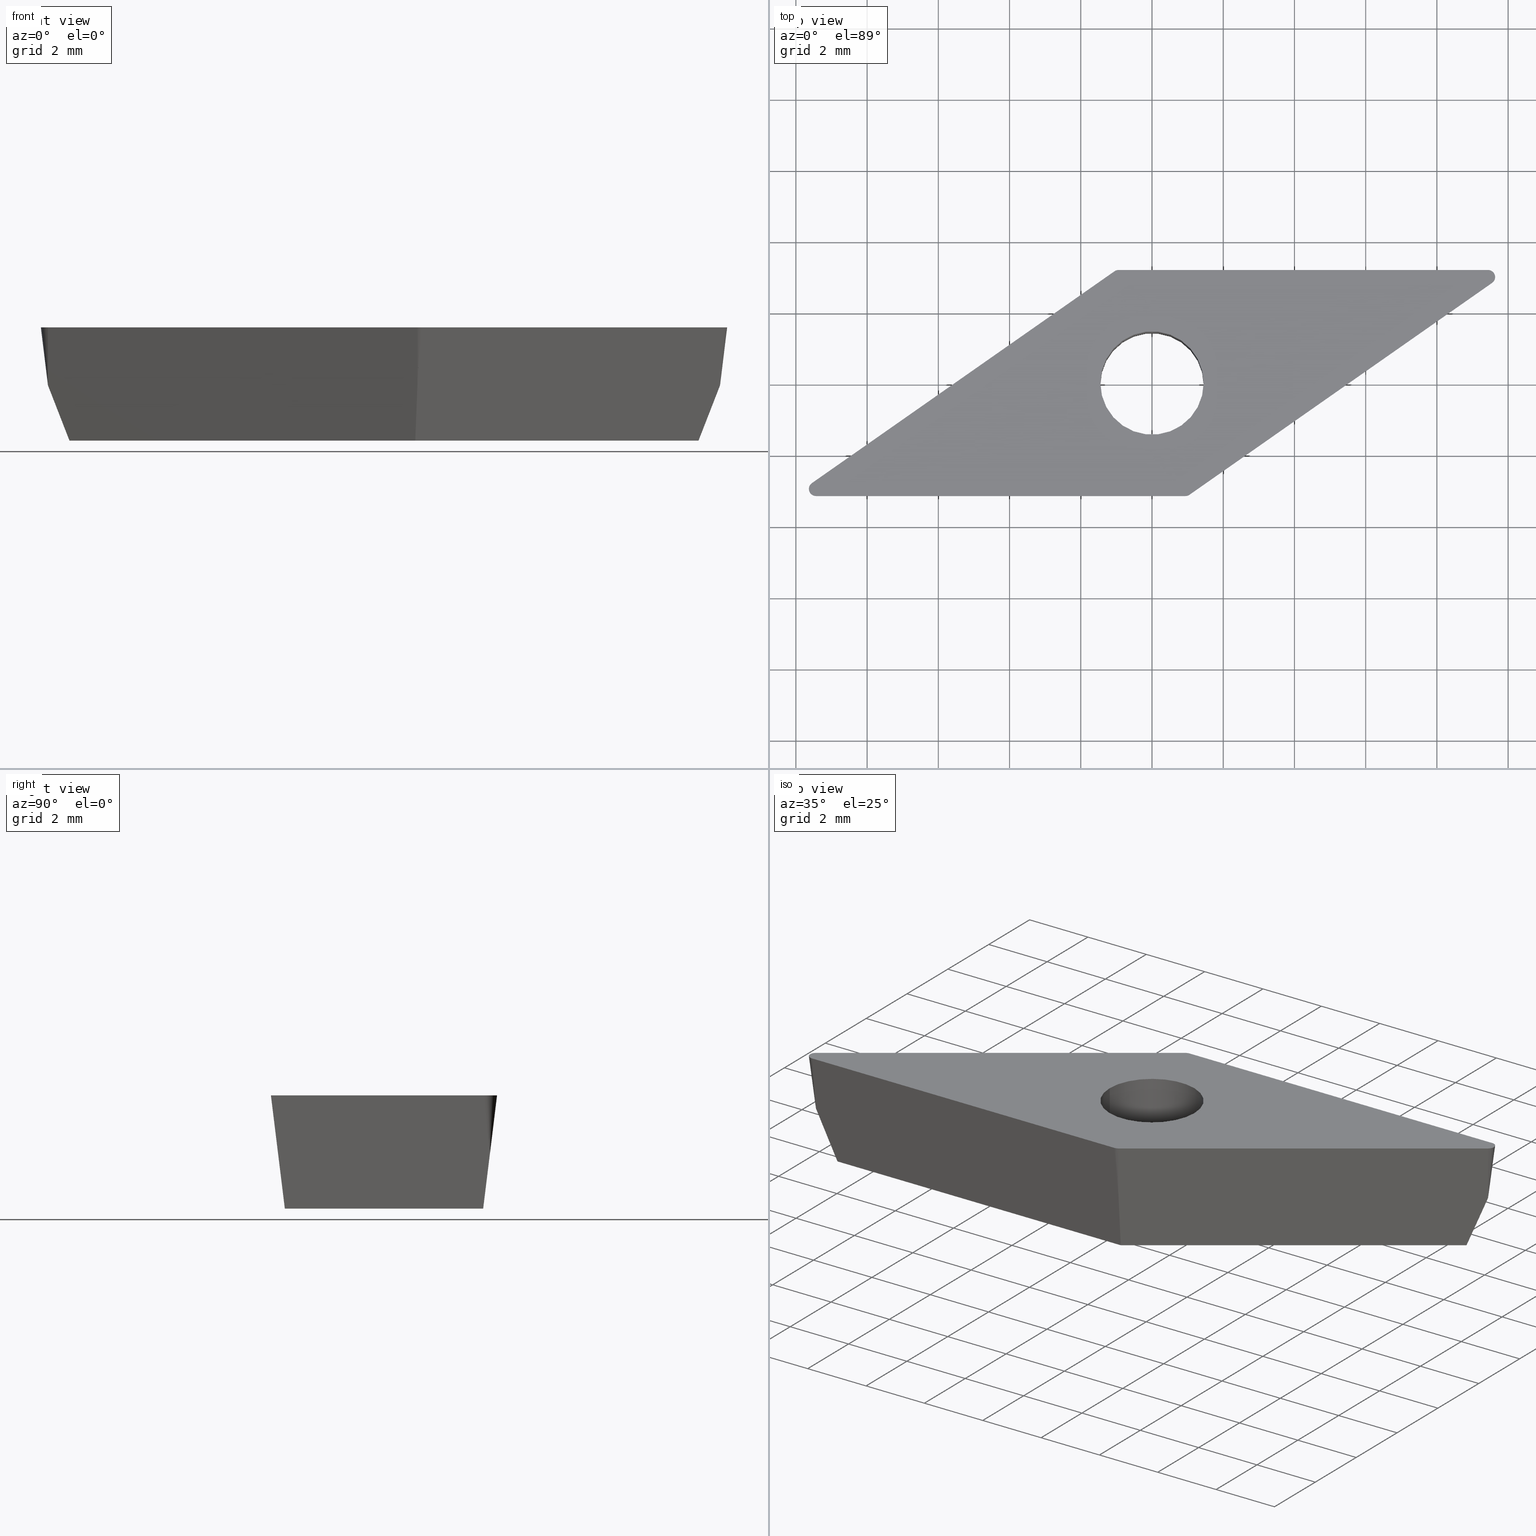
[diagram: canonical four-view strip — front | top / right | iso, engineering-drawing reading convention]
A machine part, canonical four-view strip (front | top / right | iso — engineering-drawing reading convention). The complete STEP part file that produces these views, byte-faithful:
ISO-10303-21;
HEADER;
FILE_DESCRIPTION (( 'STEP AP214' ),
    '1' );
FILE_NAME ('VC.. 110302.step',
    '2017-03-30T12:57:33',
    ( '' ),
    ( '' ),
    'SwSTEP 2.0',
    'SolidWorks 2016',
    '' );
FILE_SCHEMA (( 'AUTOMOTIVE_DESIGN' ));
ENDSEC;

DATA;
#1 = ADVANCED_FACE ( 'NONE', ( #20 ), #291, .T. ) ;
#2 = SURFACE_STYLE_USAGE ( .BOTH. , #3 ) ;
#3 = SURFACE_SIDE_STYLE ('',( #79 ) ) ;
#4 = LINE ( 'NONE', #425, #319 ) ;
#5 = FILL_AREA_STYLE ('',( #6 ) ) ;
#6 = FILL_AREA_STYLE_COLOUR ( '', #84 ) ;
#7 = EDGE_CURVE ( 'NONE', #115, #257, #66, .T. ) ;
#8 = LINE ( 'NONE', #126, #229 ) ;
#9 =( NAMED_UNIT ( * ) PLANE_ANGLE_UNIT ( ) SI_UNIT ( $, .RADIAN. ) );
#10 =( NAMED_UNIT ( * ) SI_UNIT ( $, .STERADIAN. ) SOLID_ANGLE_UNIT ( ) );
#11 =( NAMED_UNIT ( * ) PLANE_ANGLE_UNIT ( ) SI_UNIT ( $, .RADIAN. ) );
#12 =( LENGTH_UNIT ( ) NAMED_UNIT ( * ) SI_UNIT ( .MILLI., .METRE. ) );
#13 = LINE ( 'NONE', #414, #345 ) ;
#14 = PLANE ( 'NONE',  #390 ) ;
#15 = EDGE_CURVE ( 'NONE', #215, #317, #4, .T. ) ;
#16 = VECTOR ( 'NONE', #420, 1000.000000000000000 ) ;
#17 = CARTESIAN_POINT ( 'NONE',  ( 0.0000000000000000000, 0.0000000000000000000, -3.180000000000000200 ) ) ;
#18 = DIRECTION ( 'NONE',  ( -1.000000000000000000, 0.0000000000000000000, 0.0000000000000000000 ) ) ;
#19 = EDGE_CURVE ( 'NONE', #118, #131, #8, .T. ) ;
#20 = FACE_OUTER_BOUND ( 'NONE', #271, .T. ) ;
#21 = VECTOR ( 'NONE', #164, 1000.000000000000000 ) ;
#22 = CARTESIAN_POINT ( 'NONE',  ( 0.9179971634270601700, -2.911515032109588000, -2.145912857063276800 ) ) ;
#23 = ORIENTED_EDGE ( 'NONE', *, *, #429, .F. ) ;
#24 = EDGE_CURVE ( 'NONE', #215, #35, #372, .T. ) ;
#25 = CARTESIAN_POINT ( 'NONE',  ( -9.281462945656608500, -3.194979910196148200, -3.815999999999999800 ) ) ;
#26 = ORIENTED_EDGE ( 'NONE', *, *, #412, .T. ) ;
#27 = VERTEX_POINT ( 'NONE', #340 ) ;
#28 =( LENGTH_UNIT ( ) NAMED_UNIT ( * ) SI_UNIT ( .MILLI., .METRE. ) );
#29 = ORIENTED_EDGE ( 'NONE', *, *, #113, .T. ) ;
#30 = CARTESIAN_POINT ( 'NONE',  ( -6.448969398951716900, -1.211646576862349900, -3.815999999999999800 ) ) ;
#31 = CARTESIAN_POINT ( 'NONE',  ( -3.616475852246811700, 0.7716867564714594600, -3.815999999999999800 ) ) ;
#32 = ORIENTED_EDGE ( 'NONE', *, *, #201, .F. ) ;
#33 = ORIENTED_EDGE ( 'NONE', *, *, #437, .F. ) ;
#34 = APPLICATION_PROTOCOL_DEFINITION ( 'draft international standard', 'automotive_design', 1998, #352 ) ;
#35 = VERTEX_POINT ( 'NONE', #245 ) ;
#36 = CARTESIAN_POINT ( 'NONE',  ( -0.7839823055409345100, 2.755020089803848800, -3.815999999999999800 ) ) ;
#37 = LINE ( 'NONE', #346, #451 ) ;
#38 = ORIENTED_EDGE ( 'NONE', *, *, #424, .T. ) ;
#39 = UNCERTAINTY_MEASURE_WITH_UNIT (LENGTH_MEASURE( 1.000000000000000100E-005 ), #28, 'distance_accuracy_value', 'NONE');
#40 = ORIENTED_EDGE ( 'NONE', *, *, #438, .F. ) ;
#41 = ORIENTED_EDGE ( 'NONE', *, *, #276, .T. ) ;
#42 = ORIENTED_EDGE ( 'NONE', *, *, #447, .T. ) ;
#43 = CARTESIAN_POINT ( 'NONE',  ( -0.9380138969149687300, 2.974999999999994300, -1.628869285594952500 ) ) ;
#44 = CARTESIAN_POINT ( 'NONE',  ( -0.9179971634271118000, 2.911515032109584000, -2.145912857063301700 ) ) ;
#45 = EDGE_CURVE ( 'NONE', #257, #53, #403, .T. ) ;
#46 = CARTESIAN_POINT ( 'NONE',  ( -1.052729184185179800, 3.138830408857796500, 0.0000000000000000000 ) ) ;
#47 = ORIENTED_EDGE ( 'NONE', *, *, #175, .T. ) ;
#48 = CARTESIAN_POINT ( 'NONE',  ( 9.550209824300852200, 2.811169591142202800, 0.0000000000000000000 ) ) ;
#49 = EDGE_LOOP ( 'NONE', ( #119, #128, #132, #134 ) ) ;
#50 = DIRECTION ( 'NONE',  ( 2.864399321849623000E-017, -0.1218693434051477400, -0.9925461516413219800 ) ) ;
#51 = ORIENTED_EDGE ( 'NONE', *, *, #45, .T. ) ;
#52 = CARTESIAN_POINT ( 'NONE',  ( 0.9380138969149679500, -2.975000000000001000, -1.628869285594915400 ) ) ;
#53 = VERTEX_POINT ( 'NONE', #190 ) ;
#54 = DIRECTION ( 'NONE',  ( -0.0000000000000000000, -0.0000000000000000000, 1.000000000000000000 ) ) ;
#55 = CARTESIAN_POINT ( 'NONE',  ( 9.435494537030640700, 3.175000000000002500, 0.0000000000000000000 ) ) ;
#56 = CARTESIAN_POINT ( 'NONE',  ( -9.550209824300854000, -2.811169591142201900, 0.0000000000000000000 ) ) ;
#57 = ORIENTED_EDGE ( 'NONE', *, *, #438, .T. ) ;
#58 = ORIENTED_EDGE ( 'NONE', *, *, #124, .T. ) ;
#59 = DIRECTION ( 'NONE',  ( 0.06990138369076597000, -0.09982952178648431300, -0.9925461516413219800 ) ) ;
#60 = ORIENTED_EDGE ( 'NONE', *, *, #107, .F. ) ;
#61 = CARTESIAN_POINT ( 'NONE',  ( -0.8979804299392549800, 2.848030064219173200, -2.662956428531650500 ) ) ;
#62 = ORIENTED_EDGE ( 'NONE', *, *, #439, .T. ) ;
#63 = DIRECTION ( 'NONE',  ( 0.0000000000000000000, 0.0000000000000000000, -1.000000000000000000 ) ) ;
#64 = EDGE_CURVE ( 'NONE', #131, #316, #370, .T. ) ;
#65 = CARTESIAN_POINT ( 'NONE',  ( -3.885222730891063400, 1.155497075525402800, 0.0000000000000000000 ) ) ;
#66 = B_SPLINE_CURVE_WITH_KNOTS ( 'NONE', 3,
 ( #327, #287, #87, #322 ),
 .UNSPECIFIED., .F., .F.,
 ( 4, 4 ),
 ( 6.942281208919283300E-019, 0.009709412450913616100 ),
 .UNSPECIFIED. ) ;
#67 = CONICAL_SURFACE ( 'NONE', #397, 0.1999999999999999800, 0.1221730476396033400 ) ;
#68 = CARTESIAN_POINT ( 'NONE',  ( -0.8779636964513973800, 2.784545096328761900, -3.180000000000000200 ) ) ;
#69 = ORIENTED_EDGE ( 'NONE', *, *, #423, .F. ) ;
#70 = CARTESIAN_POINT ( 'NONE',  ( 0.8779636964512450600, -2.784545096328762800, -3.179999999999999300 ) ) ;
#71 = CARTESIAN_POINT ( 'NONE',  ( 3.885222730888096000, -1.155497075521182000, 0.0000000000000000000 ) ) ;
#72 = CARTESIAN_POINT ( 'NONE',  ( 9.032797348652094300, 2.848030064219322400, -2.662956428530456800 ) ) ;
#73 = ORIENTED_EDGE ( 'NONE', *, *, #24, .F. ) ;
#74 = ORIENTED_EDGE ( 'NONE', *, *, #15, .T. ) ;
#75 = CARTESIAN_POINT ( 'NONE',  ( 9.435494537030640700, 2.975000000000666200, -1.628869285589508800 ) ) ;
#76 = DIRECTION ( 'NONE',  ( 0.8191520442889946900, 0.5735764363510419400, -0.0000000000000000000 ) ) ;
#77 = DIRECTION ( 'NONE',  ( -1.000000000000000000, 0.0000000000000000000, -0.0000000000000000000 ) ) ;
#78 = ORIENTED_EDGE ( 'NONE', *, *, #104, .F. ) ;
#79 = SURFACE_STYLE_FILL_AREA ( #5 ) ;
#80 = ORIENTED_EDGE ( 'NONE', *, *, #7, .T. ) ;
#81 = CARTESIAN_POINT ( 'NONE',  ( 0.9380138969149678400, -2.974999999999999600, 0.0000000000000000000 ) ) ;
#82 = ORIENTED_EDGE ( 'NONE', *, *, #423, .T. ) ;
#83 = DIRECTION ( 'NONE',  ( 1.000000000000000000, 0.0000000000000000000, 0.0000000000000000000 ) ) ;
#84 = COLOUR_RGB ( '',0.7960784313725489700, 0.8235294117647058400, 0.9372549019607843100 ) ;
#85 = DIRECTION ( 'NONE',  ( -1.432199660924811500E-017, 0.1218693434051477400, -0.9925461516413219800 ) ) ;
#86 = DIRECTION ( 'NONE',  ( 0.0000000000000000000, 0.0000000000000000000, 1.000000000000000000 ) ) ;
#87 = CARTESIAN_POINT ( 'NONE',  ( 6.180287068457972500, 0.9281816987769934100, -3.180000000000000200 ) ) ;
#88 = CARTESIAN_POINT ( 'NONE',  ( 0.0000000000000000000, 0.0000000000000000000, -3.180000000000000200 ) ) ;
#89 = CARTESIAN_POINT ( 'NONE',  ( 0.0000000000000000000, 0.0000000000000000000, 0.0000000000000000000 ) ) ;
#90 = CARTESIAN_POINT ( 'NONE',  ( -0.8779636964513973800, 2.784545096328761900, -3.180000000000000200 ) ) ;
#91 = CARTESIAN_POINT ( 'NONE',  ( 9.234145942840971300, 2.911515032109031500, -2.145912857060378300 ) ) ;
#92 = CARTESIAN_POINT ( 'NONE',  ( -9.435494537030644200, -2.975000000000001000, 0.0000000000000000000 ) ) ;
#93 = ORIENTED_EDGE ( 'NONE', *, *, #441, .T. ) ;
#94 = ORIENTED_EDGE ( 'NONE', *, *, #262, .T. ) ;
#95 = CARTESIAN_POINT ( 'NONE',  ( 1.450000000000000000, 0.0000000000000000000, 0.0000000000000000000 ) ) ;
#96 = ORIENTED_EDGE ( 'NONE', *, *, #104, .T. ) ;
#97 = ORIENTED_EDGE ( 'NONE', *, *, #443, .F. ) ;
#98 = ORIENTED_EDGE ( 'NONE', *, *, #228, .T. ) ;
#99 = CARTESIAN_POINT ( 'NONE',  ( -1.052729184185179800, 3.138830408857796500, 0.0000000000000000000 ) ) ;
#100 = ORIENTED_EDGE ( 'NONE', *, *, #379, .F. ) ;
#101 = LINE ( 'NONE', #329, #16 ) ;
#102 = ORIENTED_EDGE ( 'NONE', *, *, #158, .T. ) ;
#103 = CARTESIAN_POINT ( 'NONE',  ( 9.435494537030640700, 2.975000000000666200, -1.628869285589508800 ) ) ;
#104 = EDGE_CURVE ( 'NONE', #115, #317, #323, .T. ) ;
#105 = ORIENTED_EDGE ( 'NONE', *, *, #447, .F. ) ;
#106 = VERTEX_POINT ( 'NONE', #455 ) ;
#107 = EDGE_CURVE ( 'NONE', #27, #368, #178, .T. ) ;
#108 =( LENGTH_UNIT ( ) NAMED_UNIT ( * ) SI_UNIT ( .MILLI., .METRE. ) );
#109 = ORIENTED_EDGE ( 'NONE', *, *, #417, .T. ) ;
#110 = B_SPLINE_CURVE_WITH_KNOTS ( 'NONE', 3,
 ( #90, #220, #233, #234 ),
 .UNSPECIFIED., .F., .F.,
 ( 4, 4 ),
 ( 5.421010862427522200E-019, 0.009709412450913817300 ),
 .UNSPECIFIED. ) ;
#111 = CARTESIAN_POINT ( 'NONE',  ( 0.0000000000000000000, 0.0000000000000000000, -3.180000000000000200 ) ) ;
#112 = DIRECTION ( 'NONE',  ( -0.8191520442889948000, -0.5735764363510417200, -0.0000000000000000000 ) ) ;
#113 = EDGE_CURVE ( 'NONE', #309, #294, #166, .T. ) ;
#114 = CARTESIAN_POINT ( 'NONE',  ( 9.435494537030642400, 2.975000000000002300, 0.0000000000000000000 ) ) ;
#115 = VERTEX_POINT ( 'NONE', #70 ) ;
#116 = CARTESIAN_POINT ( 'NONE',  ( 0.8779636964512450600, -2.784545096328762800, -3.179999999999999300 ) ) ;
#117 = ORIENTED_EDGE ( 'NONE', *, *, #429, .T. ) ;
#118 = VERTEX_POINT ( 'NONE', #381 ) ;
#119 = ORIENTED_EDGE ( 'NONE', *, *, #276, .F. ) ;
#120 = VERTEX_POINT ( 'NONE', #334 ) ;
#121 =( NAMED_UNIT ( * ) SI_UNIT ( $, .STERADIAN. ) SOLID_ANGLE_UNIT ( ) );
#122 = DIRECTION ( 'NONE',  ( 1.000000000000000000, 0.0000000000000000000, 0.0000000000000000000 ) ) ;
#123 = CARTESIAN_POINT ( 'NONE',  ( -1.450000000000000000, 1.775737858763661700E-016, 0.0000000000000000000 ) ) ;
#124 = EDGE_CURVE ( 'NONE', #120, #368, #101, .T. ) ;
#125 =( NAMED_UNIT ( * ) PLANE_ANGLE_UNIT ( ) SI_UNIT ( $, .RADIAN. ) );
#126 = CARTESIAN_POINT ( 'NONE',  ( -9.635494537030645300, -2.975000000000001000, 0.0000000000000000000 ) ) ;
#127 = FACE_OUTER_BOUND ( 'NONE', #269, .T. ) ;
#128 = ORIENTED_EDGE ( 'NONE', *, *, #45, .F. ) ;
#129 = CARTESIAN_POINT ( 'NONE',  ( -9.435494537030644200, -2.975000000000000100, -1.628869285594922500 ) ) ;
#130 = LINE ( 'NONE', #227, #459 ) ;
#131 = VERTEX_POINT ( 'NONE', #398 ) ;
#132 = ORIENTED_EDGE ( 'NONE', *, *, #7, .F. ) ;
#133 = CARTESIAN_POINT ( 'NONE',  ( 5.977658392382111600, 2.706454115594517400, -3.815999999999999800 ) ) ;
#134 = ORIENTED_EDGE ( 'NONE', *, *, #262, .F. ) ;
#135 = ORIENTED_EDGE ( 'NONE', *, *, #410, .F. ) ;
#136 = DIRECTION ( 'NONE',  ( -0.0000000000000000000, -0.0000000000000000000, 1.000000000000000000 ) ) ;
#137 = CIRCLE ( 'NONE', #306, 0.1999999999999999800 ) ;
#138 = CARTESIAN_POINT ( 'NONE',  ( 0.9380138969149678400, -2.974999999999999600, 0.0000000000000000000 ) ) ;
#139 = CARTESIAN_POINT ( 'NONE',  ( 8.831448754462112300, 2.784545096328765900, -3.180000000000000200 ) ) ;
#140 = DIRECTION ( 'NONE',  ( 1.000000000000000000, 0.0000000000000000000, 0.0000000000000000000 ) ) ;
#141 = ORIENTED_EDGE ( 'NONE', *, *, #113, .F. ) ;
#142 = DIRECTION ( 'NONE',  ( 0.0000000000000000000, 0.0000000000000000000, 1.000000000000000000 ) ) ;
#143 = CARTESIAN_POINT ( 'NONE',  ( 0.0000000000000000000, 0.0000000000000000000, 0.0000000000000000000 ) ) ;
#144 = EDGE_CURVE ( 'NONE', #35, #27, #445, .T. ) ;
#145 = VERTEX_POINT ( 'NONE', #450 ) ;
#146 = FILL_AREA_STYLE_COLOUR ( '', #473 ) ;
#147 = ORIENTED_EDGE ( 'NONE', *, *, #107, .T. ) ;
#148 = CARTESIAN_POINT ( 'NONE',  ( -8.831448754462506700, -2.784545096328764600, -3.180000000000000600 ) ) ;
#149 = FACE_OUTER_BOUND ( 'NONE', #261, .T. ) ;
#150 = ORIENTED_EDGE ( 'NONE', *, *, #325, .T. ) ;
#151 = ORIENTED_EDGE ( 'NONE', *, *, #437, .T. ) ;
#152 = CARTESIAN_POINT ( 'NONE',  ( -9.550209824300852200, -2.811169591142200600, 0.0000000000000000000 ) ) ;
#153 = PRODUCT_CONTEXT ( 'NONE', #454, 'mechanical' ) ;
#154 = CARTESIAN_POINT ( 'NONE',  ( -6.717716277595600100, -0.8278362578088999100, 0.0000000000000000000 ) ) ;
#155 = DIRECTION ( 'NONE',  ( -0.06990138369076601100, 0.09982952178648428500, -0.9925461516413219800 ) ) ;
#156 = CARTESIAN_POINT ( 'NONE',  ( 2.358507120519768700, 2.784545096328761500, -3.180000000000000600 ) ) ;
#157 = ORIENTED_EDGE ( 'NONE', *, *, #443, .T. ) ;
#158 = EDGE_CURVE ( 'NONE', #316, #118, #13, .T. ) ;
#159 = VECTOR ( 'NONE', #442, 1000.000000000000000 ) ;
#160 = CARTESIAN_POINT ( 'NONE',  ( 8.831448754462112300, 2.784545096328765900, -3.180000000000000200 ) ) ;
#161 = CARTESIAN_POINT ( 'NONE',  ( -1.052729184185178000, 3.138830408857797400, 0.0000000000000000000 ) ) ;
#162 = DIRECTION ( 'NONE',  ( 1.000000000000000000, 0.0000000000000000000, 0.0000000000000000000 ) ) ;
#163 = ORIENTED_EDGE ( 'NONE', *, *, #64, .T. ) ;
#164 = DIRECTION ( 'NONE',  ( 0.0000000000000000000, 0.0000000000000000000, 1.000000000000000000 ) ) ;
#165 = CARTESIAN_POINT ( 'NONE',  ( -9.032797348651866900, -2.848030064219177600, -2.662956428531634500 ) ) ;
#166 = CIRCLE ( 'NONE', #240, 1.450000000000000000 ) ;
#167 = ORIENTED_EDGE ( 'NONE', *, *, #379, .T. ) ;
#168 = CARTESIAN_POINT ( 'NONE',  ( 0.9380138969149685000, -2.706454115594514800, -3.815999999999999800 ) ) ;
#169 = CARTESIAN_POINT ( 'NONE',  ( -2.519822247733567900, -2.706454115594514800, -3.815999999999999800 ) ) ;
#170 = ORIENTED_EDGE ( 'NONE', *, *, #415, .T. ) ;
#171 = CARTESIAN_POINT ( 'NONE',  ( -5.977658392382109800, -2.706454115594516100, -3.815999999999999800 ) ) ;
#172 = ORIENTED_EDGE ( 'NONE', *, *, #24, .T. ) ;
#173 = ORIENTED_EDGE ( 'NONE', *, *, #144, .T. ) ;
#174 = CARTESIAN_POINT ( 'NONE',  ( -9.435494537030644200, -2.706454115594516100, -3.815999999999999800 ) ) ;
#175 = EDGE_CURVE ( 'NONE', #118, #299, #385, .T. ) ;
#176 = CARTESIAN_POINT ( 'NONE',  ( 0.9380138969149686100, -3.174999999999999800, 0.0000000000000000000 ) ) ;
#177 = CARTESIAN_POINT ( 'NONE',  ( -2.519822247733567900, -3.174999999999999800, 0.0000000000000000000 ) ) ;
#178 = LINE ( 'NONE', #187, #184 ) ;
#179 = ORIENTED_EDGE ( 'NONE', *, *, #412, .F. ) ;
#180 = CONICAL_SURFACE ( 'NONE', #369, 0.2000000000000005100, 0.1221730476396033400 ) ;
#181 = ORIENTED_EDGE ( 'NONE', *, *, #417, .F. ) ;
#182 = CARTESIAN_POINT ( 'NONE',  ( -9.435494537030644200, -2.975000000000001000, 0.0000000000000000000 ) ) ;
#183 = DIRECTION ( 'NONE',  ( 1.000000000000000000, 1.175192727644018400E-016, -0.0000000000000000000 ) ) ;
#184 = VECTOR ( 'NONE', #377, 1000.000000000000000 ) ;
#185 = ORIENTED_EDGE ( 'NONE', *, *, #201, .T. ) ;
#186 = FILL_AREA_STYLE ('',( #146 ) ) ;
#187 = CARTESIAN_POINT ( 'NONE',  ( -1.001073654690764100, 3.174999999999999800, 0.0000000000000000000 ) ) ;
#188 = ORIENTED_EDGE ( 'NONE', *, *, #410, .T. ) ;
#189 = ORIENTED_EDGE ( 'NONE', *, *, #124, .F. ) ;
#190 = CARTESIAN_POINT ( 'NONE',  ( -0.8779636964513973800, 2.784545096328761900, -3.180000000000000200 ) ) ;
#191 = DIRECTION ( 'NONE',  ( -1.000000000000000000, 1.734723475976802700E-014, 0.0000000000000000000 ) ) ;
#192 = ORIENTED_EDGE ( 'NONE', *, *, #424, .F. ) ;
#193 = AXIS2_PLACEMENT_3D ( 'NONE', #328, #54, #446 ) ;
#194 = ORIENTED_EDGE ( 'NONE', *, *, #325, .F. ) ;
#195 = ORIENTED_EDGE ( 'NONE', *, *, #228, .F. ) ;
#196 = ORIENTED_EDGE ( 'NONE', *, *, #15, .F. ) ;
#197 = EDGE_LOOP ( 'NONE', ( #277, #198, #97 ) ) ;
#198 = ORIENTED_EDGE ( 'NONE', *, *, #19, .T. ) ;
#199 = CARTESIAN_POINT ( 'NONE',  ( 0.0000000000000000000, 0.0000000000000000000, 0.0000000000000000000 ) ) ;
#200 = ORIENTED_EDGE ( 'NONE', *, *, #415, .F. ) ;
#201 = EDGE_CURVE ( 'NONE', #247, #294, #251, .T. ) ;
#202 = FACE_OUTER_BOUND ( 'NONE', #49, .T. ) ;
#203 = DIRECTION ( 'NONE',  ( -0.0000000000000000000, -0.0000000000000000000, 1.000000000000000000 ) ) ;
#204 = CARTESIAN_POINT ( 'NONE',  ( 0.0000000000000000000, 0.0000000000000000000, -3.180000000000000200 ) ) ;
#205 = FACE_BOUND ( 'NONE', #254, .T. ) ;
#206 = DIRECTION ( 'NONE',  ( -0.0000000000000000000, -0.0000000000000000000, 1.000000000000000000 ) ) ;
#207 = ORIENTED_EDGE ( 'NONE', *, *, #441, .F. ) ;
#208 = ORIENTED_EDGE ( 'NONE', *, *, #439, .F. ) ;
#209 = ORIENTED_EDGE ( 'NONE', *, *, #144, .F. ) ;
#210 = VECTOR ( 'NONE', #216, 1000.000000000000000 ) ;
#211 = AXIS2_PLACEMENT_3D ( 'NONE', #331, #338, #297 ) ;
#212 = SURFACE_STYLE_USAGE ( .BOTH. , #213 ) ;
#213 = SURFACE_SIDE_STYLE ('',( #436 ) ) ;
#214 = DIRECTION ( 'NONE',  ( -1.000000000000000000, 0.0000000000000000000, 0.0000000000000000000 ) ) ;
#215 = VERTEX_POINT ( 'NONE', #295 ) ;
#216 = DIRECTION ( 'NONE',  ( 0.06990138369076601100, -0.09982952178648428500, 0.9925461516413219800 ) ) ;
#217 = DIRECTION ( 'NONE',  ( 1.000000000000000000, 0.0000000000000000000, 0.0000000000000000000 ) ) ;
#218 = ORIENTED_EDGE ( 'NONE', *, *, #19, .F. ) ;
#219 = DIRECTION ( 'NONE',  ( 0.0000000000000000000, 0.0000000000000000000, 1.000000000000000000 ) ) ;
#220 = CARTESIAN_POINT ( 'NONE',  ( -3.529125382455689400, 0.9281816987771024400, -3.179999999999999700 ) ) ;
#221 = DIRECTION ( 'NONE',  ( 0.0000000000000000000, 0.0000000000000000000, 1.000000000000000000 ) ) ;
#222 = ORIENTED_EDGE ( 'NONE', *, *, #158, .F. ) ;
#223 = CARTESIAN_POINT ( 'NONE',  ( -10.06981349750329400, -3.175000000000001200, 0.0000000000000000000 ) ) ;
#224 = CARTESIAN_POINT ( 'NONE',  ( -9.234145942841239600, -2.911515032109588800, -2.145912857063272400 ) ) ;
#225 = DIRECTION ( 'NONE',  ( 0.0000000000000000000, 0.0000000000000000000, 1.000000000000000000 ) ) ;
#226 = EDGE_LOOP ( 'NONE', ( #135, #141 ) ) ;
#227 = CARTESIAN_POINT ( 'NONE',  ( 1.001073654690764100, -3.174999999999999800, 0.0000000000000000000 ) ) ;
#228 = EDGE_CURVE ( 'NONE', #317, #310, #37, .T. ) ;
#229 = VECTOR ( 'NONE', #241, 1000.000000000000000 ) ;
#230 = ORIENTED_EDGE ( 'NONE', *, *, #64, .F. ) ;
#231 = CARTESIAN_POINT ( 'NONE',  ( -2.358507120520003200, -2.784545096328761900, -3.180000000000000600 ) ) ;
#232 = CARTESIAN_POINT ( 'NONE',  ( 0.9380138969149678400, -3.174999999999999800, 0.0000000000000000000 ) ) ;
#233 = CARTESIAN_POINT ( 'NONE',  ( -6.180287068459081800, -0.9281816987758656500, -3.179999999999999700 ) ) ;
#234 = CARTESIAN_POINT ( 'NONE',  ( -8.831448754462506700, -2.784545096328764600, -3.180000000000000600 ) ) ;
#235 = CIRCLE ( 'NONE', #348, 0.2000000000000005100 ) ;
#236 = FACE_OUTER_BOUND ( 'NONE', #253, .T. ) ;
#237 = ADVANCED_FACE ( 'NONE', ( #375 ), #462, .T. ) ;
#238 = AXIS2_PLACEMENT_3D ( 'NONE', #374, #371, #367 ) ;
#239 = VECTOR ( 'NONE', #50, 1000.000000000000000 ) ;
#240 = AXIS2_PLACEMENT_3D ( 'NONE', #285, #283, #282 ) ;
#241 = DIRECTION ( 'NONE',  ( -0.1218693434051477400, 0.0000000000000000000, 0.9925461516413219800 ) ) ;
#242 = CARTESIAN_POINT ( 'NONE',  ( -9.435494537030644200, -3.175000000000001200, 0.0000000000000000000 ) ) ;
#243 = ADVANCED_FACE ( 'NONE', ( #320 ), #321, .T. ) ;
#244 = LINE ( 'NONE', #223, #426 ) ;
#245 = CARTESIAN_POINT ( 'NONE',  ( 9.550209824300852200, 2.811169591142202800, 0.0000000000000000000 ) ) ;
#246 = ADVANCED_FACE ( 'NONE', ( #288 ), #383, .T. ) ;
#247 = VERTEX_POINT ( 'NONE', #366 ) ;
#248 = CARTESIAN_POINT ( 'NONE',  ( 5.594977937490945400, 2.784545096328763700, -3.180000000000000600 ) ) ;
#249 = CARTESIAN_POINT ( 'NONE',  ( 2.519822247733566100, 3.174999999999999800, 0.0000000000000000000 ) ) ;
#250 = CARTESIAN_POINT ( 'NONE',  ( -0.9380138969149677300, 3.174999999999999800, 0.0000000000000000000 ) ) ;
#251 = LINE ( 'NONE', #376, #159 ) ;
#252 = CARTESIAN_POINT ( 'NONE',  ( 9.435494537030640700, 2.706454115594517400, -3.815999999999999800 ) ) ;
#253 = EDGE_LOOP ( 'NONE', ( #189, #192, #194 ) ) ;
#254 = EDGE_LOOP ( 'NONE', ( #109, #117 ) ) ;
#255 = EDGE_LOOP ( 'NONE', ( #195, #196, #200 ) ) ;
#256 = APPLICATION_PROTOCOL_DEFINITION ( 'draft international standard', 'automotive_design', 1998, #365 ) ;
#257 = VERTEX_POINT ( 'NONE', #364 ) ;
#258 = EDGE_LOOP ( 'NONE', ( #179, #181, #185, #188 ) ) ;
#259 = CARTESIAN_POINT ( 'NONE',  ( -1.450000000000000000, 1.775737858763661700E-016, -3.180000000000000200 ) ) ;
#260 = DIRECTION ( 'NONE',  ( -0.0000000000000000000, -0.0000000000000000000, 1.000000000000000000 ) ) ;
#261 = EDGE_LOOP ( 'NONE', ( #207, #208, #209 ) ) ;
#262 = EDGE_CURVE ( 'NONE', #106, #115, #401, .T. ) ;
#263 = DIRECTION ( 'NONE',  ( -1.000000000000000000, 2.168404344971008900E-015, 0.0000000000000000000 ) ) ;
#264 = ADVANCED_FACE ( 'NONE', ( #422 ), #387, .F. ) ;
#265 = DIRECTION ( 'NONE',  ( -0.0000000000000000000, -0.0000000000000000000, 1.000000000000000000 ) ) ;
#266 = CLOSED_SHELL ( 'NONE', ( #246, #264, #461, #243, #237, #382, #467, #471, #469, #378, #472, #470, #1 ) ) ;
#267 = CARTESIAN_POINT ( 'NONE',  ( -0.9380138969149678400, 2.974999999999999600, 0.0000000000000000000 ) ) ;
#268 = CARTESIAN_POINT ( 'NONE',  ( 9.435494537030640700, 3.175000000000002500, 0.0000000000000000000 ) ) ;
#269 = EDGE_LOOP ( 'NONE', ( #147, #150, #151, #157, #163, #167, #170, #172, #173 ) ) ;
#270 = CARTESIAN_POINT ( 'NONE',  ( -0.9380138969149678400, 2.974999999999999600, 0.0000000000000000000 ) ) ;
#271 = EDGE_LOOP ( 'NONE', ( #218, #222, #230 ) ) ;
#272 = SHAPE_DEFINITION_REPRESENTATION ( #440, #358 ) ;
#273 = CARTESIAN_POINT ( 'NONE',  ( -5.977658392382109800, -3.175000000000001200, 0.0000000000000000000 ) ) ;
#274 = CARTESIAN_POINT ( 'NONE',  ( -0.9380138969149678400, 3.174999999999999800, 0.0000000000000000000 ) ) ;
#275 = CARTESIAN_POINT ( 'NONE',  ( 0.9380138969149679500, -2.975000000000001000, -1.628869285594915400 ) ) ;
#276 = EDGE_CURVE ( 'NONE', #53, #106, #110, .T. ) ;
#277 = ORIENTED_EDGE ( 'NONE', *, *, #175, .F. ) ;
#278 = EDGE_LOOP ( 'NONE', ( #23, #26, #29, #32 ) ) ;
#279 = VERTEX_POINT ( 'NONE', #161 ) ;
#280 = CARTESIAN_POINT ( 'NONE',  ( 5.977658392382111600, 3.175000000000002500, 0.0000000000000000000 ) ) ;
#281 = PRODUCT ( 'VC.. 110302', 'VC.. 110302', '', ( #386 ) ) ;
#282 = DIRECTION ( 'NONE',  ( 1.000000000000000000, 0.0000000000000000000, 0.0000000000000000000 ) ) ;
#283 = DIRECTION ( 'NONE',  ( 0.0000000000000000000, 0.0000000000000000000, 1.000000000000000000 ) ) ;
#284 = VECTOR ( 'NONE', #59, 1000.000000000000000 ) ;
#285 = CARTESIAN_POINT ( 'NONE',  ( 0.0000000000000000000, 0.0000000000000000000, 0.0000000000000000000 ) ) ;
#286 = EDGE_LOOP ( 'NONE', ( #51, #57, #58, #60, #62, #69 ) ) ;
#287 = CARTESIAN_POINT ( 'NONE',  ( 3.529125382452774400, -0.9281816987732596200, -3.180000000000000200 ) ) ;
#288 = FACE_OUTER_BOUND ( 'NONE', #197, .T. ) ;
#289 = AXIS2_PLACEMENT_3D ( 'NONE', #92, #432, #326 ) ;
#290 = DIRECTION ( 'NONE',  ( 0.0000000000000000000, 0.0000000000000000000, -1.000000000000000000 ) ) ;
#291 = CONICAL_SURFACE ( 'NONE', #289, 0.2000000000000005100, 0.1221730476396033400 ) ;
#292 = CARTESIAN_POINT ( 'NONE',  ( -9.550209824300852200, -2.811169591142200600, 0.0000000000000000000 ) ) ;
#293 = DIRECTION ( 'NONE',  ( -0.06990138369076597000, 0.09982952178648431300, 0.9925461516413219800 ) ) ;
#294 = VERTEX_POINT ( 'NONE', #95 ) ;
#295 = CARTESIAN_POINT ( 'NONE',  ( 1.052729184185176200, -3.138830408857799600, 0.0000000000000000000 ) ) ;
#296 = CARTESIAN_POINT ( 'NONE',  ( 3.616475852243856700, -0.7716867564672292800, -3.815999999999999800 ) ) ;
#297 = DIRECTION ( 'NONE',  ( -1.000000000000000000, 0.0000000000000000000, 0.0000000000000000000 ) ) ;
#298 = CIRCLE ( 'NONE', #356, 1.450000000000000000 ) ;
#299 = VERTEX_POINT ( 'NONE', #56 ) ;
#300 = VERTEX_POINT ( 'NONE', #75 ) ;
#301 = CARTESIAN_POINT ( 'NONE',  ( 0.0000000000000000000, 0.0000000000000000000, -3.180000000000000200 ) ) ;
#302 = LINE ( 'NONE', #99, #284 ) ;
#303 = EDGE_LOOP ( 'NONE', ( #33, #38, #40, #41, #42, #47 ) ) ;
#304 = DIRECTION ( 'NONE',  ( -1.000000000000000000, 0.0000000000000000000, 0.0000000000000000000 ) ) ;
#305 = DIRECTION ( 'NONE',  ( 1.432199660924811500E-017, -0.1218693434051477400, 0.9925461516413219800 ) ) ;
#306 = AXIS2_PLACEMENT_3D ( 'NONE', #267, #265, #263 ) ;
#307 = B_SPLINE_CURVE_WITH_KNOTS ( 'NONE', 3,
 ( #160, #72, #91, #103 ),
 .UNSPECIFIED., .F., .F.,
 ( 4, 4 ),
 ( 8.673617379884035500E-019, 0.001675455421955207700 ),
 .UNSPECIFIED. ) ;
#308 = EDGE_LOOP ( 'NONE', ( #73, #74, #78, #80, #82, #93 ) ) ;
#309 = VERTEX_POINT ( 'NONE', #123 ) ;
#310 = VERTEX_POINT ( 'NONE', #232 ) ;
#311 = FACE_BOUND ( 'NONE', #226, .T. ) ;
#312 = AXIS2_PLACEMENT_3D ( 'NONE', #270, #260, #18 ) ;
#313 = PRESENTATION_STYLE_ASSIGNMENT (( #2 ) ) ;
#314 = EDGE_LOOP ( 'NONE', ( #94, #96, #98, #100, #102, #105 ) ) ;
#315 = AXIS2_PLACEMENT_3D ( 'NONE', #138, #136, #214 ) ;
#316 = VERTEX_POINT ( 'NONE', #349 ) ;
#317 = VERTEX_POINT ( 'NONE', #275 ) ;
#318 = APPLICATION_PROTOCOL_DEFINITION ( 'draft international standard', 'automotive_design', 1998, #362 ) ;
#319 = VECTOR ( 'NONE', #155, 1000.000000000000000 ) ;
#320 = FACE_OUTER_BOUND ( 'NONE', #286, .T. ) ;
#321 = B_SPLINE_SURFACE_WITH_KNOTS ( 'NONE', 1, 3, ( 
 ( #268, #280, #249, #250 ),
 ( #252, #133, #333, #332 ) ),
 .UNSPECIFIED., .F., .F., .F.,
 ( 2, 2 ),
 ( 4, 4 ),
 ( 0.0000000000000000000, 1.000000000000000000 ),
 ( -0.01043656819172140600, -6.305975777579628800E-005 ),
 .UNSPECIFIED. ) ;
#322 = CARTESIAN_POINT ( 'NONE',  ( 8.831448754462112300, 2.784545096328765900, -3.180000000000000200 ) ) ;
#323 = B_SPLINE_CURVE_WITH_KNOTS ( 'NONE', 3,
 ( #404, #344, #22, #52 ),
 .UNSPECIFIED., .F., .F.,
 ( 4, 4 ),
 ( 4.336808689942017700E-019, 0.001563932731954600700 ),
 .UNSPECIFIED. ) ;
#324 = CARTESIAN_POINT ( 'NONE',  ( 1.052729184185176200, -3.138830408857799600, 0.0000000000000000000 ) ) ;
#325 = EDGE_CURVE ( 'NONE', #368, #279, #137, .T. ) ;
#326 = DIRECTION ( 'NONE',  ( -1.000000000000000000, 0.0000000000000000000, 0.0000000000000000000 ) ) ;
#327 = CARTESIAN_POINT ( 'NONE',  ( 0.8779636964512450600, -2.784545096328762800, -3.179999999999999300 ) ) ;
#328 = CARTESIAN_POINT ( 'NONE',  ( -9.435494537030644200, -2.975000000000001000, 0.0000000000000000000 ) ) ;
#329 = CARTESIAN_POINT ( 'NONE',  ( -0.9380138969149677300, 3.174999999999999800, 0.0000000000000000000 ) ) ;
#330 = AXIS2_PLACEMENT_3D ( 'NONE', #143, #142, #140 ) ;
#331 = CARTESIAN_POINT ( 'NONE',  ( -9.435494537030644200, -2.975000000000001000, 0.0000000000000000000 ) ) ;
#332 = CARTESIAN_POINT ( 'NONE',  ( -0.9380138969149676200, 2.706454115594514800, -3.815999999999999800 ) ) ;
#333 = CARTESIAN_POINT ( 'NONE',  ( 2.519822247733566100, 2.706454115594514800, -3.815999999999999800 ) ) ;
#334 = CARTESIAN_POINT ( 'NONE',  ( -0.9380138969149687300, 2.974999999999994300, -1.628869285594952500 ) ) ;
#335 = AXIS2_PLACEMENT_3D ( 'NONE', #301, #336, #162 ) ;
#336 = DIRECTION ( 'NONE',  ( 0.0000000000000000000, 0.0000000000000000000, 1.000000000000000000 ) ) ;
#337 = CARTESIAN_POINT ( 'NONE',  ( -5.594977937491256300, -2.784545096328762800, -3.180000000000000600 ) ) ;
#338 = DIRECTION ( 'NONE',  ( -0.0000000000000000000, -0.0000000000000000000, 1.000000000000000000 ) ) ;
#339 = PRODUCT ( 'VC.. 110302', 'VC.. 110302', '', ( #153 ) ) ;
#340 = CARTESIAN_POINT ( 'NONE',  ( 9.435494537030640700, 3.175000000000002500, 0.0000000000000000000 ) ) ;
#341 = PRODUCT_DEFINITION_SHAPE ( 'NONE', 'NONE',  #464 ) ;
#342 = CARTESIAN_POINT ( 'NONE',  ( -0.8779636964513973800, 2.784545096328761900, -3.180000000000000200 ) ) ;
#343 = MECHANICAL_DESIGN_GEOMETRIC_PRESENTATION_REPRESENTATION (  '', ( #360 ), #359 ) ;
#344 = CARTESIAN_POINT ( 'NONE',  ( 0.8979804299391515000, -2.848030064219175400, -2.662956428531638500 ) ) ;
#345 = VECTOR ( 'NONE', #85, 1000.000000000000000 ) ;
#346 = CARTESIAN_POINT ( 'NONE',  ( 0.9380138969149686100, -3.174999999999999800, 0.0000000000000000000 ) ) ;
#347 = PRESENTATION_LAYER_ASSIGNMENT (  '', '', ( #360 ) ) ;
#348 = AXIS2_PLACEMENT_3D ( 'NONE', #182, #203, #191 ) ;
#349 = CARTESIAN_POINT ( 'NONE',  ( -9.435494537030644200, -3.175000000000001200, 0.0000000000000000000 ) ) ;
#350 = UNCERTAINTY_MEASURE_WITH_UNIT (LENGTH_MEASURE( 1.000000000000000100E-005 ), #108, 'distance_accuracy_value', 'NONE');
#351 = CARTESIAN_POINT ( 'NONE',  ( 0.7839823055409309600, -2.755020089803851900, -3.815999999999999800 ) ) ;
#352 = APPLICATION_CONTEXT ( 'automotive_design' ) ;
#353 = CARTESIAN_POINT ( 'NONE',  ( 9.550209824300852200, 2.811169591142202800, 0.0000000000000000000 ) ) ;
#354 = CARTESIAN_POINT ( 'NONE',  ( 6.717716277595252800, 0.8278362578094081700, 0.0000000000000000000 ) ) ;
#355 = CARTESIAN_POINT ( 'NONE',  ( 9.281462945656606700, 3.194979910196150900, -3.815999999999999800 ) ) ;
#356 = AXIS2_PLACEMENT_3D ( 'NONE', #88, #86, #83 ) ;
#357 = CARTESIAN_POINT ( 'NONE',  ( 6.448969398950999300, 1.211646576863351500, -3.815999999999999800 ) ) ;
#358 = ADVANCED_BREP_SHAPE_REPRESENTATION ( 'VC.. 110302', ( #418, #413 ), #393 ) ;
#359 =( GEOMETRIC_REPRESENTATION_CONTEXT ( 3 ) GLOBAL_UNCERTAINTY_ASSIGNED_CONTEXT ( ( #350 ) ) GLOBAL_UNIT_ASSIGNED_CONTEXT ( ( #108, #125, #121 ) ) REPRESENTATION_CONTEXT ( 'NONE', 'WORKASPACE' ) );
#360 = STYLED_ITEM ( 'NONE', ( #431 ), #418 ) ;
#361 = CARTESIAN_POINT ( 'NONE',  ( -8.831448754462506700, -2.784545096328764600, -3.180000000000000600 ) ) ;
#362 = APPLICATION_CONTEXT ( 'automotive_design' ) ;
#363 = AXIS2_PLACEMENT_3D ( 'NONE', #204, #219, #217 ) ;
#364 = CARTESIAN_POINT ( 'NONE',  ( 8.831448754462112300, 2.784545096328765900, -3.180000000000000200 ) ) ;
#365 = APPLICATION_CONTEXT ( 'automotive_design' ) ;
#366 = CARTESIAN_POINT ( 'NONE',  ( 1.450000000000000000, 0.0000000000000000000, -3.180000000000000200 ) ) ;
#367 = DIRECTION ( 'NONE',  ( -1.000000000000000000, 4.336808689942006700E-015, 0.0000000000000000000 ) ) ;
#368 = VERTEX_POINT ( 'NONE', #274 ) ;
#369 = AXIS2_PLACEMENT_3D ( 'NONE', #114, #206, #304 ) ;
#370 = CIRCLE ( 'NONE', #193, 0.2000000000000005100 ) ;
#371 = DIRECTION ( 'NONE',  ( -0.0000000000000000000, -0.0000000000000000000, 1.000000000000000000 ) ) ;
#372 = LINE ( 'NONE', #434, #373 ) ;
#373 = VECTOR ( 'NONE', #76, 1000.000000000000000 ) ;
#374 = CARTESIAN_POINT ( 'NONE',  ( 9.435494537030642400, 2.975000000000002300, 0.0000000000000000000 ) ) ;
#375 = FACE_OUTER_BOUND ( 'NONE', #308, .T. ) ;
#376 = CARTESIAN_POINT ( 'NONE',  ( 1.450000000000000000, 0.0000000000000000000, -3.180000000000000200 ) ) ;
#377 = DIRECTION ( 'NONE',  ( -1.000000000000000000, -2.350385455288036700E-016, -0.0000000000000000000 ) ) ;
#378 = ADVANCED_FACE ( 'NONE', ( #236 ), #476, .T. ) ;
#379 = EDGE_CURVE ( 'NONE', #316, #310, #130, .T. ) ;
#380 = VECTOR ( 'NONE', #293, 1000.000000000000000 ) ;
#381 = CARTESIAN_POINT ( 'NONE',  ( -9.435494537030644200, -2.975000000000000100, -1.628869285594922500 ) ) ;
#382 = ADVANCED_FACE ( 'NONE', ( #395 ), #456, .T. ) ;
#383 = CONICAL_SURFACE ( 'NONE', #211, 0.2000000000000005100, 0.1221730476396033400 ) ;
#384 = CARTESIAN_POINT ( 'NONE',  ( 0.0000000000000000000, 0.0000000000000000000, 0.0000000000000000000 ) ) ;
#385 = LINE ( 'NONE', #292, #380 ) ;
#386 = PRODUCT_CONTEXT ( 'NONE', #365, 'mechanical' ) ;
#387 = CYLINDRICAL_SURFACE ( 'NONE', #335, 1.450000000000000000 ) ;
#388 = CYLINDRICAL_SURFACE ( 'NONE', #402, 1.450000000000000000 ) ;
#389 = DIRECTION ( 'NONE',  ( -0.0000000000000000000, -0.0000000000000000000, 1.000000000000000000 ) ) ;
#390 = AXIS2_PLACEMENT_3D ( 'NONE', #17, #63, #77 ) ;
#391 = PLANE ( 'NONE',  #396 ) ;
#392 = DIRECTION ( 'NONE',  ( -1.000000000000000000, 0.0000000000000000000, 0.0000000000000000000 ) ) ;
#393 =( GEOMETRIC_REPRESENTATION_CONTEXT ( 3 ) GLOBAL_UNCERTAINTY_ASSIGNED_CONTEXT ( ( #405 ) ) GLOBAL_UNIT_ASSIGNED_CONTEXT ( ( #12, #11, #10 ) ) REPRESENTATION_CONTEXT ( 'NONE', 'WORKASPACE' ) );
#394 = DIRECTION ( 'NONE',  ( -1.000000000000000000, 0.0000000000000000000, -0.0000000000000000000 ) ) ;
#395 = FACE_OUTER_BOUND ( 'NONE', #314, .T. ) ;
#396 = AXIS2_PLACEMENT_3D ( 'NONE', #384, #290, #394 ) ;
#397 = AXIS2_PLACEMENT_3D ( 'NONE', #81, #389, #392 ) ;
#398 = CARTESIAN_POINT ( 'NONE',  ( -9.635494537030645300, -2.975000000000001000, 0.0000000000000000000 ) ) ;
#399 = LINE ( 'NONE', #48, #210 ) ;
#400 = PRODUCT_DEFINITION_CONTEXT ( 'detailed design', #352, 'design' ) ;
#401 = B_SPLINE_CURVE_WITH_KNOTS ( 'NONE', 3,
 ( #361, #337, #231, #116 ),
 .UNSPECIFIED., .F., .F.,
 ( 4, 4 ),
 ( 0.0000000000000000000, 0.009709412450913749600 ),
 .UNSPECIFIED. ) ;
#402 = AXIS2_PLACEMENT_3D ( 'NONE', #111, #221, #122 ) ;
#403 = B_SPLINE_CURVE_WITH_KNOTS ( 'NONE', 3,
 ( #139, #248, #156, #342 ),
 .UNSPECIFIED., .F., .F.,
 ( 4, 4 ),
 ( 0.0000000000000000000, 0.009709412450913508500 ),
 .UNSPECIFIED. ) ;
#404 = CARTESIAN_POINT ( 'NONE',  ( 0.8779636964512450600, -2.784545096328762800, -3.179999999999999300 ) ) ;
#405 = UNCERTAINTY_MEASURE_WITH_UNIT (LENGTH_MEASURE( 1.000000000000000100E-005 ), #12, 'distance_accuracy_value', 'NONE');
#406 = DIRECTION ( 'NONE',  ( 1.000000000000000000, 0.0000000000000000000, 0.0000000000000000000 ) ) ;
#407 = MECHANICAL_DESIGN_GEOMETRIC_PRESENTATION_REPRESENTATION (  '', ( #428 ), #421 ) ;
#408 = PRESENTATION_LAYER_ASSIGNMENT (  '', '', ( #428 ) ) ;
#409 = B_SPLINE_CURVE_WITH_KNOTS ( 'NONE', 3,
 ( #148, #165, #224, #129 ),
 .UNSPECIFIED., .F., .F.,
 ( 4, 4 ),
 ( 8.673617379884034500E-019, 0.001675455421949979700 ),
 .UNSPECIFIED. ) ;
#410 = EDGE_CURVE ( 'NONE', #294, #309, #468, .T. ) ;
#411 = B_SPLINE_SURFACE_WITH_KNOTS ( 'NONE', 1, 3, ( 
 ( #46, #65, #154, #152 ),
 ( #36, #31, #30, #25 ) ),
 .UNSPECIFIED., .F., .F., .F.,
 ( 2, 2 ),
 ( 4, 4 ),
 ( 0.0000000000000000000, 1.000000000000000000 ),
 ( -0.01100782739441825800, -0.0006343189604726489300 ),
 .UNSPECIFIED. ) ;
#412 = EDGE_CURVE ( 'NONE', #145, #309, #465, .T. ) ;
#413 = AXIS2_PLACEMENT_3D ( 'NONE', #199, #225, #406 ) ;
#414 = CARTESIAN_POINT ( 'NONE',  ( -9.435494537030644200, -3.175000000000001200, 0.0000000000000000000 ) ) ;
#415 = EDGE_CURVE ( 'NONE', #310, #215, #460, .T. ) ;
#416 = AXIS2_PLACEMENT_3D ( 'NONE', #89, #448, #458 ) ;
#417 = EDGE_CURVE ( 'NONE', #247, #145, #463, .T. ) ;
#418 = MANIFOLD_SOLID_BREP ( 'Formschr�ge1', #266 ) ;
#419 = PRODUCT_DEFINITION ( 'UNKNOWN', '', #457, #400 ) ;
#420 = DIRECTION ( 'NONE',  ( -2.864399321849623000E-017, 0.1218693434051477400, 0.9925461516413219800 ) ) ;
#421 =( GEOMETRIC_REPRESENTATION_CONTEXT ( 3 ) GLOBAL_UNCERTAINTY_ASSIGNED_CONTEXT ( ( #39 ) ) GLOBAL_UNIT_ASSIGNED_CONTEXT ( ( #28, #9, #466 ) ) REPRESENTATION_CONTEXT ( 'NONE', 'WORKASPACE' ) );
#422 = FACE_OUTER_BOUND ( 'NONE', #278, .T. ) ;
#423 = EDGE_CURVE ( 'NONE', #257, #300, #307, .T. ) ;
#424 = EDGE_CURVE ( 'NONE', #279, #120, #302, .T. ) ;
#425 = CARTESIAN_POINT ( 'NONE',  ( 1.052729184185176200, -3.138830408857799600, 0.0000000000000000000 ) ) ;
#426 = VECTOR ( 'NONE', #112, 1000.000000000000100 ) ;
#427 = B_SPLINE_CURVE_WITH_KNOTS ( 'NONE', 3,
 ( #68, #61, #44, #43 ),
 .UNSPECIFIED., .F., .F.,
 ( 4, 4 ),
 ( 0.0000000000000000000, 0.001563932731954557600 ),
 .UNSPECIFIED. ) ;
#428 = STYLED_ITEM ( 'NONE', ( #313 ), #358 ) ;
#429 = EDGE_CURVE ( 'NONE', #145, #247, #298, .T. ) ;
#430 = FACE_OUTER_BOUND ( 'NONE', #255, .T. ) ;
#431 = PRESENTATION_STYLE_ASSIGNMENT (( #212 ) ) ;
#432 = DIRECTION ( 'NONE',  ( -0.0000000000000000000, -0.0000000000000000000, 1.000000000000000000 ) ) ;
#433 = FACE_OUTER_BOUND ( 'NONE', #303, .T. ) ;
#434 = CARTESIAN_POINT ( 'NONE',  ( 10.06981349750329200, 3.175000000000002500, 0.0000000000000000000 ) ) ;
#435 = PRODUCT_RELATED_PRODUCT_CATEGORY ( 'part', '', ( #281 ) ) ;
#436 = SURFACE_STYLE_FILL_AREA ( #186 ) ;
#437 = EDGE_CURVE ( 'NONE', #279, #299, #244, .T. ) ;
#438 = EDGE_CURVE ( 'NONE', #53, #120, #427, .T. ) ;
#439 = EDGE_CURVE ( 'NONE', #27, #300, #452, .T. ) ;
#440 = PRODUCT_DEFINITION_SHAPE ( 'NONE', 'NONE',  #419 ) ;
#441 = EDGE_CURVE ( 'NONE', #300, #35, #399, .T. ) ;
#442 = DIRECTION ( 'NONE',  ( 0.0000000000000000000, 0.0000000000000000000, 1.000000000000000000 ) ) ;
#443 = EDGE_CURVE ( 'NONE', #299, #131, #235, .T. ) ;
#444 = APPLICATION_PROTOCOL_DEFINITION ( 'draft international standard', 'automotive_design', 1998, #454 ) ;
#445 = CIRCLE ( 'NONE', #238, 0.2000000000000005100 ) ;
#446 = DIRECTION ( 'NONE',  ( -1.000000000000000000, 0.0000000000000000000, 0.0000000000000000000 ) ) ;
#447 = EDGE_CURVE ( 'NONE', #106, #118, #409, .T. ) ;
#448 = DIRECTION ( 'NONE',  ( 0.0000000000000000000, 0.0000000000000000000, 1.000000000000000000 ) ) ;
#449 = PRODUCT_DEFINITION_FORMATION_WITH_SPECIFIED_SOURCE ( 'ANY', '', #281, .NOT_KNOWN. ) ;
#450 = CARTESIAN_POINT ( 'NONE',  ( -1.450000000000000000, 1.775737858763661700E-016, -3.180000000000000200 ) ) ;
#451 = VECTOR ( 'NONE', #305, 1000.000000000000000 ) ;
#452 = LINE ( 'NONE', #55, #239 ) ;
#453 = PRODUCT_RELATED_PRODUCT_CATEGORY ( 'part', '', ( #339 ) ) ;
#454 = APPLICATION_CONTEXT ( 'automotive_design' ) ;
#455 = CARTESIAN_POINT ( 'NONE',  ( -8.831448754462506700, -2.784545096328764600, -3.180000000000000600 ) ) ;
#456 = B_SPLINE_SURFACE_WITH_KNOTS ( 'NONE', 1, 3, ( 
 ( #242, #273, #177, #176 ),
 ( #174, #171, #169, #168 ) ),
 .UNSPECIFIED., .F., .F., .F.,
 ( 2, 2 ),
 ( 4, 4 ),
 ( 0.0000000000000000000, 1.000000000000000000 ),
 ( -0.01043656819172141000, -6.305975777579628800E-005 ),
 .UNSPECIFIED. ) ;
#457 = PRODUCT_DEFINITION_FORMATION_WITH_SPECIFIED_SOURCE ( 'ANY', '', #339, .NOT_KNOWN. ) ;
#458 = DIRECTION ( 'NONE',  ( 1.000000000000000000, 0.0000000000000000000, 0.0000000000000000000 ) ) ;
#459 = VECTOR ( 'NONE', #183, 1000.000000000000000 ) ;
#460 = CIRCLE ( 'NONE', #315, 0.1999999999999999800 ) ;
#461 = ADVANCED_FACE ( 'NONE', ( #433 ), #411, .T. ) ;
#462 = B_SPLINE_SURFACE_WITH_KNOTS ( 'NONE', 1, 3, ( 
 ( #324, #71, #354, #353 ),
 ( #351, #296, #357, #355 ) ),
 .UNSPECIFIED., .F., .F., .F.,
 ( 2, 2 ),
 ( 4, 4 ),
 ( 0.0000000000000000000, 1.000000000000000000 ),
 ( -0.01100782739441826100, -0.0006343189604726489300 ),
 .UNSPECIFIED. ) ;
#463 = CIRCLE ( 'NONE', #363, 1.450000000000000000 ) ;
#464 = PRODUCT_DEFINITION ( 'UNKNOWN', '', #449, #475 ) ;
#465 = LINE ( 'NONE', #259, #21 ) ;
#466 =( NAMED_UNIT ( * ) SI_UNIT ( $, .STERADIAN. ) SOLID_ANGLE_UNIT ( ) );
#467 = ADVANCED_FACE ( 'NONE', ( #205, #202 ), #14, .T. ) ;
#468 = CIRCLE ( 'NONE', #330, 1.450000000000000000 ) ;
#469 = ADVANCED_FACE ( 'NONE', ( #474 ), #388, .F. ) ;
#470 = ADVANCED_FACE ( 'NONE', ( #149 ), #180, .T. ) ;
#471 = ADVANCED_FACE ( 'NONE', ( #311, #127 ), #391, .F. ) ;
#472 = ADVANCED_FACE ( 'NONE', ( #430 ), #67, .T. ) ;
#473 = COLOUR_RGB ( '',0.7960784313725489700, 0.8235294117647058400, 0.9372549019607843100 ) ;
#474 = FACE_OUTER_BOUND ( 'NONE', #258, .T. ) ;
#475 = PRODUCT_DEFINITION_CONTEXT ( 'detailed design', #362, 'design' ) ;
#476 = CONICAL_SURFACE ( 'NONE', #312, 0.1999999999999999800, 0.1221730476396033400 ) ;
ENDSEC;
END-ISO-10303-21;
